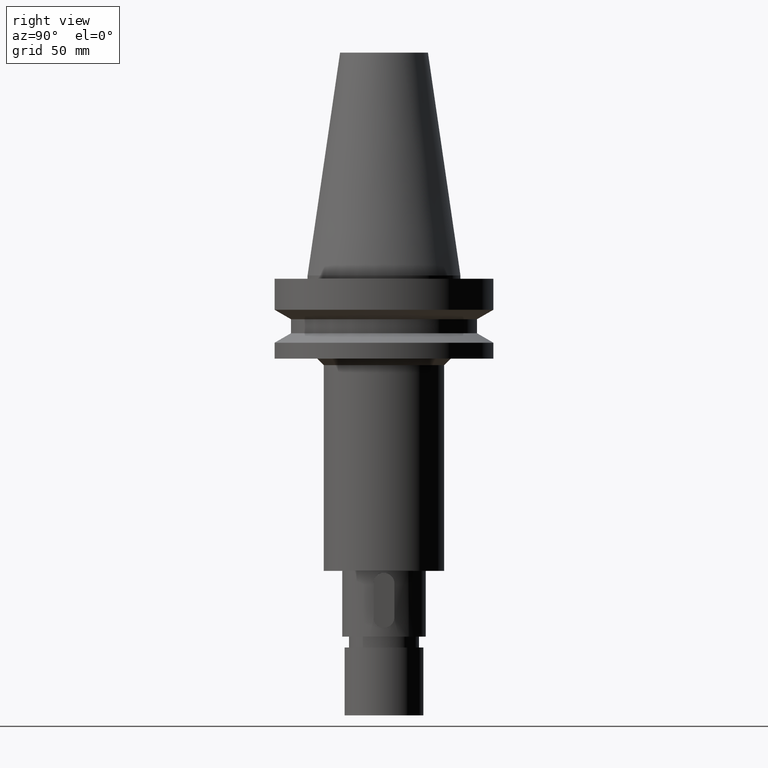
[diagram: clean part render]
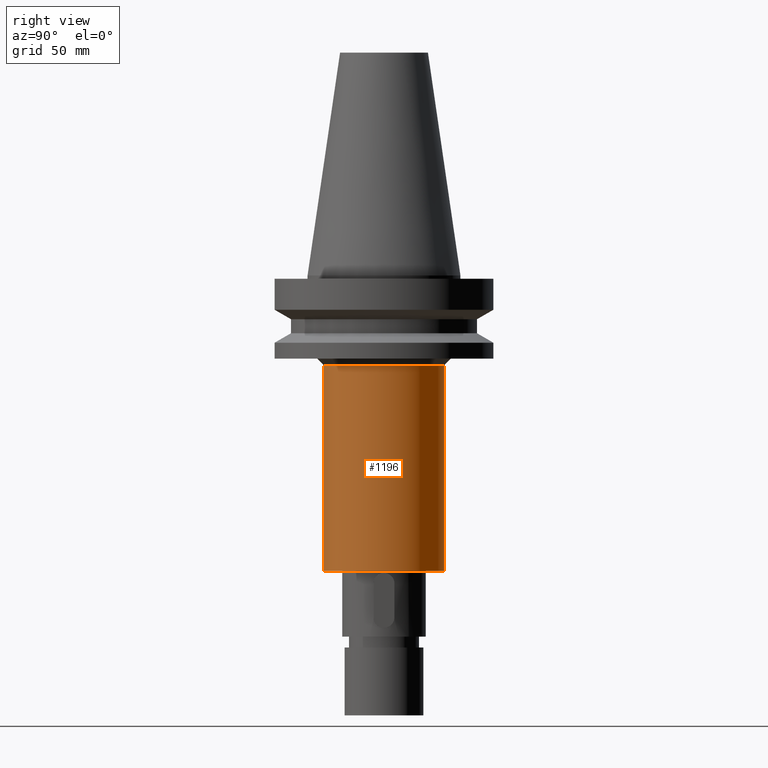
[diagram: same view with one face highlighted and labeled with its STEP entity id]
A machine part, right view. The second image highlights one B-rep face of the part: STEP entity #1196.
In plain terms, the highlighted cylindrical surface (partial cylindrical patch) has radius 27.5 mm, axis along (0, 0, -1).
Its self-contained STEP definition (entity closure, byte-faithful):
#375=CARTESIAN_POINT('',(0.E0,0.E0,-4.1E1));
#376=DIRECTION('',(0.E0,0.E0,-1.E0));
#377=DIRECTION('',(0.E0,1.E0,0.E0));
#378=AXIS2_PLACEMENT_3D('',#375,#376,#377);
#398=DIRECTION('',(0.E0,0.E0,-1.E0));
#399=VECTOR('',#398,9.4E1);
#400=CARTESIAN_POINT('',(0.E0,-2.75E1,-4.1E1));
#401=LINE('',#400,#399);
#405=DIRECTION('',(0.E0,0.E0,-1.E0));
#406=VECTOR('',#405,9.4E1);
#407=CARTESIAN_POINT('',(0.E0,2.75E1,-4.1E1));
#408=LINE('',#407,#406);
#420=CARTESIAN_POINT('',(0.E0,2.656748766070E-14,-1.35E2));
#421=DIRECTION('',(0.E0,0.E0,1.E0));
#422=DIRECTION('',(0.E0,-1.E0,0.E0));
#423=AXIS2_PLACEMENT_3D('',#420,#421,#422);
#762=CARTESIAN_POINT('',(0.E0,2.75E1,-4.1E1));
#763=VERTEX_POINT('',#762);
#764=CARTESIAN_POINT('',(0.E0,-2.75E1,-4.1E1));
#765=VERTEX_POINT('',#764);
#766=CARTESIAN_POINT('',(0.E0,2.75E1,-1.35E2));
#767=VERTEX_POINT('',#766);
#768=CARTESIAN_POINT('',(0.E0,-2.75E1,-1.35E2));
#769=VERTEX_POINT('',#768);
#1184=CARTESIAN_POINT('',(0.E0,2.656748766070E-14,1.1694E2));
#1185=DIRECTION('',(0.E0,0.E0,-1.E0));
#1186=DIRECTION('',(0.E0,-1.E0,0.E0));
#1187=AXIS2_PLACEMENT_3D('',#1184,#1185,#1186);
#1188=CYLINDRICAL_SURFACE('',#1187,2.75E1);
#1189=ORIENTED_EDGE('',*,*,#1174,.T.);
#1191=ORIENTED_EDGE('',*,*,#1190,.F.);
#1192=ORIENTED_EDGE('',*,*,#1177,.F.);
#1193=ORIENTED_EDGE('',*,*,#1148,.F.);
#1194=EDGE_LOOP('',(#1189,#1191,#1192,#1193));
#1195=FACE_OUTER_BOUND('',#1194,.F.);
#379=CIRCLE('',#378,2.75E1);
#424=CIRCLE('',#423,2.75E1);
#1148=EDGE_CURVE('',#763,#765,#379,.T.);
#1174=EDGE_CURVE('',#763,#767,#408,.T.);
#1177=EDGE_CURVE('',#765,#769,#401,.T.);
#1190=EDGE_CURVE('',#769,#767,#424,.T.);
#1196=ADVANCED_FACE('',(#1195),#1188,.T.);